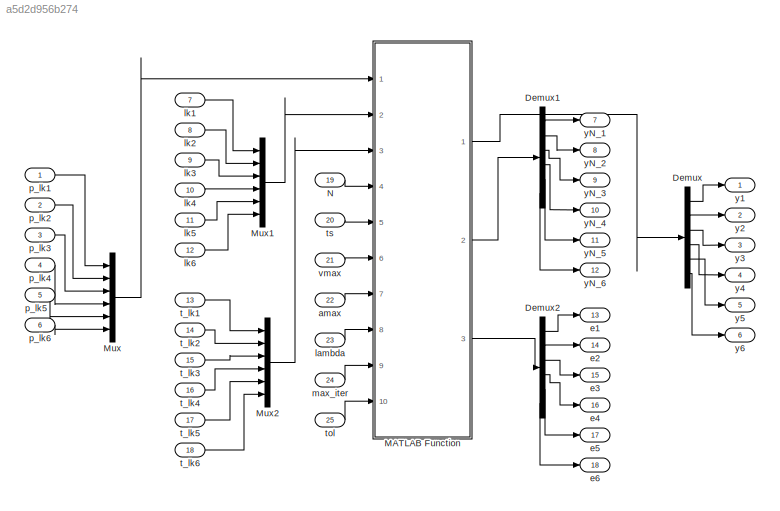
MODEL slx_a5d2d956b274
KIND model
CONFIG AbsTol = auto
CONFIG EnableMultiTasking = off
CONFIG FixedStep = auto
CONFIG MaxStep = auto
CONFIG MinStep = auto
CONFIG RelTol = 1e-3
CONFIG SampleTimeConstraint = Unconstrained
CONFIG SolverName = FixedStepAuto
CONFIG StartTime = 0.0
CONFIG StopTime = 10.0
BLOCK [Demux] Demux
  Outputs = 6
  Ports = [1, 6]
BLOCK [Demux] Demux1
  Outputs = 6
  Ports = [1, 6]
BLOCK [Demux] Demux2
  Outputs = 6
  Ports = [1, 6]
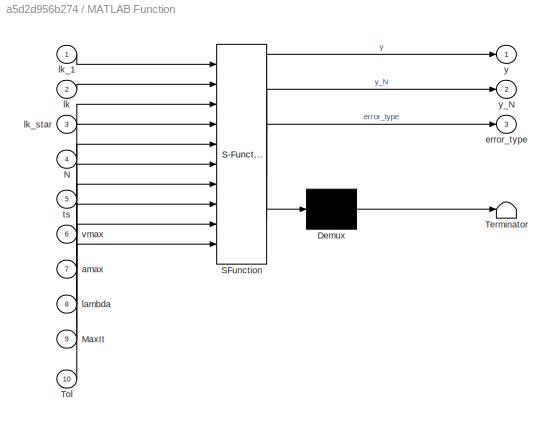
BLOCK [SubSystem] MATLAB Function
  ErrorFcn = Stateflow.Translate.translate
  PermitHierarchicalResolution = ExplicitOnly
  Ports = [10, 3]
  RequestExecContextInheritance = off
  SFBlockType = MATLAB Function
  TreatAsAtomicUnit = on
BLOCK [Demux] MATLAB Function/ Demux 
  Outputs = 1
  Ports = [1, 1]
BLOCK [S-Function] MATLAB Function/ SFunction 
  EnableBusSupport = on
  FunctionName = sf_sfun
  PortCounts = [10 4]
  Ports = [10, 4]
  SFcnIsStateOwnerBlock = off
  SFunctionDeploymentMode = off
  Tag = Stateflow S-Function 2
BLOCK [Terminator] MATLAB Function/ Terminator 
BLOCK [Inport] MATLAB Function/MaxIt
  Port = 9
BLOCK [Inport] MATLAB Function/N
  Port = 4
BLOCK [Inport] MATLAB Function/Tol
  Port = 10
BLOCK [Inport] MATLAB Function/amax
  Port = 7
BLOCK [Outport] MATLAB Function/error_type
  Port = 3
  VectorParamsAs1DForOutWhenUnconnected = off
BLOCK [Inport] MATLAB Function/lambda
  Port = 8
BLOCK [Inport] MATLAB Function/lk
  Port = 2
BLOCK [Inport] MATLAB Function/lk_1
BLOCK [Inport] MATLAB Function/lk_star
  Port = 3
BLOCK [Inport] MATLAB Function/ts
  Port = 5
BLOCK [Inport] MATLAB Function/vmax
  Port = 6
BLOCK [Outport] MATLAB Function/y
  VectorParamsAs1DForOutWhenUnconnected = off
BLOCK [Outport] MATLAB Function/y_N
  Port = 2
  VectorParamsAs1DForOutWhenUnconnected = off
BLOCK [Mux] Mux
  DisplayOption = bar
  Inputs = 6
  Ports = [6, 1]
BLOCK [Mux] Mux1
  DisplayOption = bar
  Inputs = 6
  Ports = [6, 1]
BLOCK [Mux] Mux2
  DisplayOption = bar
  Inputs = 6
  Ports = [6, 1]
BLOCK [Inport] N
  Port = 19
BLOCK [Inport] amax
  Port = 22
BLOCK [Outport] e1
  Port = 13
BLOCK [Outport] e2
  Port = 14
BLOCK [Outport] e3
  Port = 15
BLOCK [Outport] e4
  Port = 16
BLOCK [Outport] e5
  Port = 17
BLOCK [Outport] e6
  Port = 18
BLOCK [Inport] lambda
  Port = 23
BLOCK [Inport] lk1
  Port = 7
BLOCK [Inport] lk2
  Port = 8
BLOCK [Inport] lk3
  Port = 9
BLOCK [Inport] lk4
  Port = 10
BLOCK [Inport] lk5
  Port = 11
BLOCK [Inport] lk6
  Port = 12
BLOCK [Inport] max_iter
  Port = 24
BLOCK [Inport] p_lk1
BLOCK [Inport] p_lk2
  Port = 2
BLOCK [Inport] p_lk3
  Port = 3
BLOCK [Inport] p_lk4
  Port = 4
BLOCK [Inport] p_lk5
  Port = 5
BLOCK [Inport] p_lk6
  Port = 6
BLOCK [Inport] t_lk1
  Port = 13
BLOCK [Inport] t_lk2
  Port = 14
BLOCK [Inport] t_lk3
  Port = 15
BLOCK [Inport] t_lk4
  Port = 16
BLOCK [Inport] t_lk5
  Port = 17
BLOCK [Inport] t_lk6
  Port = 18
BLOCK [Inport] tol
  Port = 25
BLOCK [Inport] ts
  Port = 20
BLOCK [Inport] vmax
  Port = 21
BLOCK [Outport] y1
BLOCK [Outport] y2
  Port = 2
BLOCK [Outport] y3
  Port = 3
BLOCK [Outport] y4
  Port = 4
BLOCK [Outport] y5
  Port = 5
BLOCK [Outport] y6
  Port = 6
BLOCK [Outport] yN_1
  Port = 7
BLOCK [Outport] yN_2
  Port = 8
BLOCK [Outport] yN_3
  Port = 9
BLOCK [Outport] yN_4
  Port = 10
BLOCK [Outport] yN_5
  Port = 11
BLOCK [Outport] yN_6
  Port = 12
LINE Demux1:1 -> yN_1:1
LINE Demux1:2 -> yN_2:1
LINE Demux1:3 -> yN_3:1
LINE Demux1:4 -> yN_4:1
LINE Demux1:5 -> yN_5:1
LINE Demux1:6 -> yN_6:1
LINE Demux2:1 -> e1:1
LINE Demux2:2 -> e2:1
LINE Demux2:3 -> e3:1
LINE Demux2:4 -> e4:1
LINE Demux2:5 -> e5:1
LINE Demux2:6 -> e6:1
LINE Demux:1 -> y1:1
LINE Demux:2 -> y2:1
LINE Demux:3 -> y3:1
LINE Demux:4 -> y4:1
LINE Demux:5 -> y5:1
LINE Demux:6 -> y6:1
LINE MATLAB Function:1 -> Demux:1
LINE MATLAB Function:2 -> Demux1:1
LINE MATLAB Function:3 -> Demux2:1
LINE Mux1:1 -> MATLAB Function:2
LINE Mux2:1 -> MATLAB Function:3
LINE Mux:1 -> MATLAB Function:1
LINE N:1 -> MATLAB Function:4
LINE amax:1 -> MATLAB Function:7
LINE lambda:1 -> MATLAB Function:8
LINE lk1:1 -> Mux1:1
LINE lk2:1 -> Mux1:2
LINE lk3:1 -> Mux1:3
LINE lk4:1 -> Mux1:4
LINE lk5:1 -> Mux1:5
LINE lk6:1 -> Mux1:6
LINE max_iter:1 -> MATLAB Function:9
LINE p_lk1:1 -> Mux:1
LINE p_lk2:1 -> Mux:2
LINE p_lk3:1 -> Mux:3
LINE p_lk4:1 -> Mux:4
LINE p_lk5:1 -> Mux:5
LINE p_lk6:1 -> Mux:6
LINE t_lk1:1 -> Mux2:1
LINE t_lk2:1 -> Mux2:2
LINE t_lk3:1 -> Mux2:3
LINE t_lk4:1 -> Mux2:4
LINE t_lk5:1 -> Mux2:5
LINE t_lk6:1 -> Mux2:6
LINE tol:1 -> MATLAB Function:10
LINE ts:1 -> MATLAB Function:5
LINE vmax:1 -> MATLAB Function:6
CHART MATLAB Function states=1 transitions=1
  STATE_LABEL 'eML_blk_kernel()'
  STATE_LABEL "SCRIPT:\nfunction [y, y_N , error_type] = fcn(lk_1,lk,lk_star,N,ts,vmax,amax,lambda,MaxIt,Tol)\n    y = zeros(6,1);\n    y_N = zeros(6,1);\n    error_type = zeros(6,1);\n    %%构建对六个轴一样的矩阵\n    H = diag([2*lambda*ones(1,N-1) 1+lambda]) - 2*lambda*diag([ones(N-1,1)],-1);\n    H = 1/2*(H+H');\n    Av = eye(N) - diag(ones(N-1,1),-1);\n    Aa = eye(N) - 2*diag(ones(N-1,1),-1) + diag(ones(N-2,1),-2);\n    A = [Av...<+1679ch>"
CHART  states=0 transitions=0
